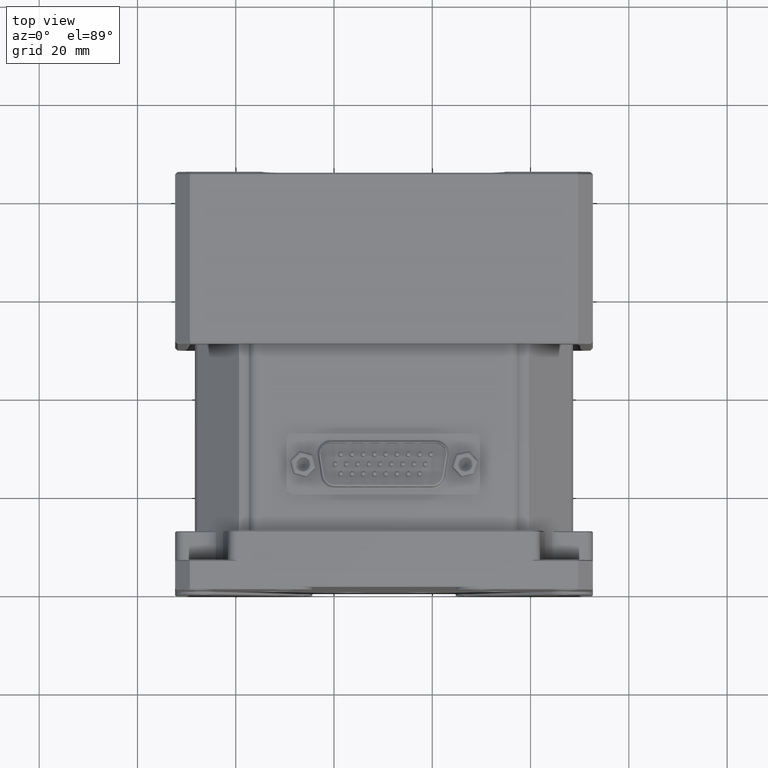
[diagram: clean part render]
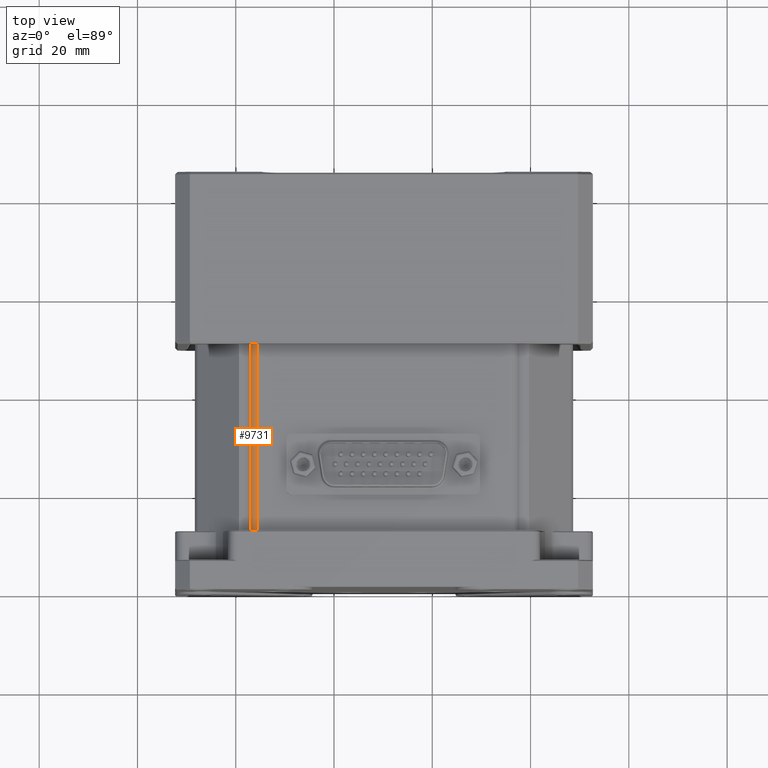
[diagram: same view with one face highlighted and labeled with its STEP entity id]
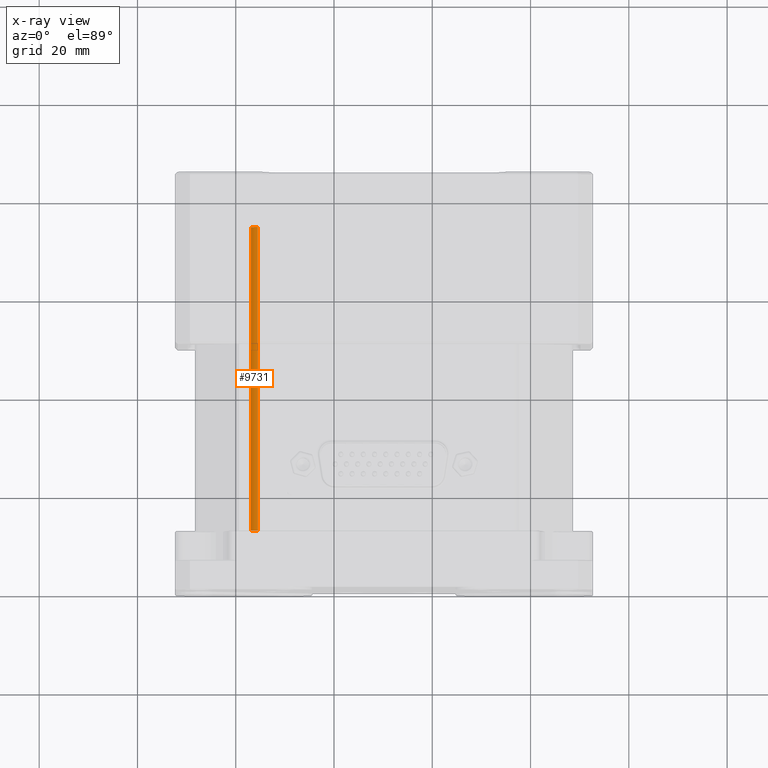
[diagram: x-ray of the same camera — body ghosted, the highlighted face saturated]
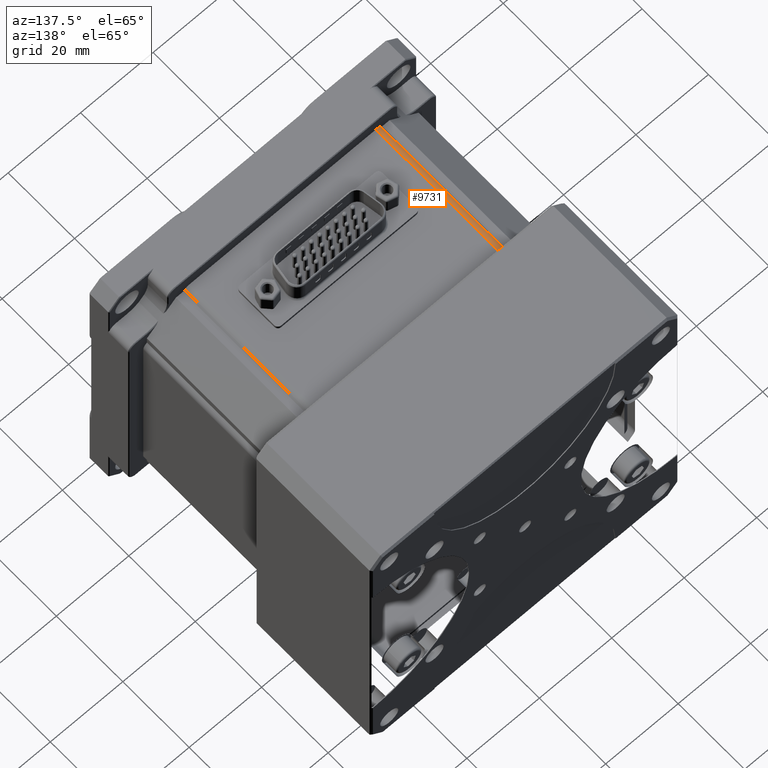
[diagram: same view with one face highlighted and labeled with its STEP entity id]
A machine part, top view. The second image highlights one B-rep face of the part: STEP entity #9731.
The next image is the same camera in x-ray: the body ghosted, the highlighted face saturated — about 0% of this face is hidden behind the body in this view.
A second angle (auxiliary view) of the same face is appended — the face is thin or edge-on in the first view.
In plain terms, the highlighted cylindrical surface (edge-blend (fillet) strip) has radius 2 mm, axis along (0, -1, 0).
Its self-contained STEP definition (entity closure, byte-faithful):
#950 = DIRECTION ( 'NONE',  ( 1.000000000000000000, 0.000000000000000000, -4.336808689942013792E-16 ) ) ;
#1280 = LINE ( 'NONE', #35700, #29539 ) ;
#1447 = LINE ( 'NONE', #43457, #28060 ) ;
#3072 = CYLINDRICAL_SURFACE ( 'NONE', #35656, 2.000000000000001776 ) ;
#3123 = CIRCLE ( 'NONE', #44409, 2.000000000000001776 ) ;
#7750 = DIRECTION ( 'NONE',  ( -2.498001805406610105E-16, 1.000000000000000000, -1.103725197610289945E-16 ) ) ;
#8751 = CARTESIAN_POINT ( 'NONE',  ( 64.50292062912660640, 12.00000000000000000, 6.235424745644159000E-14 ) ) ;
#8861 = EDGE_CURVE ( 'NONE', #40846, #19357, #3123, .T. ) ;
#9731 = ADVANCED_FACE ( 'NONE', ( #40927 ), #3072, .T. ) ;
#12979 = ORIENTED_EDGE ( 'NONE', *, *, #8861, .F. ) ;
#14529 = EDGE_CURVE ( 'NONE', #35911, #40846, #1447, .T. ) ;
#15914 = DIRECTION ( 'NONE',  ( 1.000000000000000000, 0.000000000000000000, -4.336808689942013792E-16 ) ) ;
#17024 = EDGE_CURVE ( 'NONE', #19357, #29696, #1280, .T. ) ;
#17902 = ORIENTED_EDGE ( 'NONE', *, *, #17024, .F. ) ;
#18042 = EDGE_CURVE ( 'NONE', #35911, #29696, #21296, .T. ) ;
#18502 = DIRECTION ( 'NONE',  ( 4.786645028304279889E-32, -1.000000000000000000, 1.103725197610289945E-16 ) ) ;
#19158 = EDGE_LOOP ( 'NONE', ( #12979, #31406, #29398, #17902 ) ) ;
#19214 = DIRECTION ( 'NONE',  ( 2.498001805406610105E-16, -1.000000000000000000, 1.103725197610289945E-16 ) ) ;
#19357 = VERTEX_POINT ( 'NONE', #21154 ) ;
#20600 = DIRECTION ( 'NONE',  ( 1.000000000000000000, 0.000000000000000000, -4.336808689942013792E-16 ) ) ;
#21154 = CARTESIAN_POINT ( 'NONE',  ( 63.08870706675349993, 12.00000000000000000, -0.5857864376269120710 ) ) ;
#21296 = CIRCLE ( 'NONE', #24989, 2.000000000000001776 ) ;
#23734 = CARTESIAN_POINT ( 'NONE',  ( 63.08870706675349993, 73.80000000000001137, -0.5857864376268420159 ) ) ;
#24989 = AXIS2_PLACEMENT_3D ( 'NONE', #29565, #33479, #15914 ) ;
#25198 = CARTESIAN_POINT ( 'NONE',  ( 64.50292062912660640, 12.00000000000000000, -2.000000000000000000 ) ) ;
#28060 = VECTOR ( 'NONE', #19214, 1000.000000000000000 ) ;
#29398 = ORIENTED_EDGE ( 'NONE', *, *, #18042, .T. ) ;
#29539 = VECTOR ( 'NONE', #7750, 1000.000000000000000 ) ;
#29565 = CARTESIAN_POINT ( 'NONE',  ( 64.50292062912660640, 73.80000000000001137, -1.999999999999944933 ) ) ;
#29696 = VERTEX_POINT ( 'NONE', #23734 ) ;
#31406 = ORIENTED_EDGE ( 'NONE', *, *, #14529, .F. ) ;
#33479 = DIRECTION ( 'NONE',  ( 4.786645028304279889E-32, -1.000000000000000000, 1.103725197610289945E-16 ) ) ;
#35104 = CARTESIAN_POINT ( 'NONE',  ( 64.50292062912660640, 73.80000000000001137, 5.551115123125779547E-14 ) ) ;
#35656 = AXIS2_PLACEMENT_3D ( 'NONE', #37467, #44618, #20600 ) ;
#35700 = CARTESIAN_POINT ( 'NONE',  ( 63.08870706675349993, 74.00000000000000000, -0.5857864376268420159 ) ) ;
#35911 = VERTEX_POINT ( 'NONE', #35104 ) ;
#37467 = CARTESIAN_POINT ( 'NONE',  ( 64.50292062912660640, 74.00000000000000000, -1.999999999999944933 ) ) ;
#40846 = VERTEX_POINT ( 'NONE', #8751 ) ;
#40927 = FACE_OUTER_BOUND ( 'NONE', #19158, .T. ) ;
#43457 = CARTESIAN_POINT ( 'NONE',  ( 64.50292062912660640, 74.00000000000000000, 5.551115123125779547E-14 ) ) ;
#44409 = AXIS2_PLACEMENT_3D ( 'NONE', #25198, #18502, #950 ) ;
#44618 = DIRECTION ( 'NONE',  ( 4.786645028304279889E-32, -1.000000000000000000, 1.103725197610289945E-16 ) ) ;